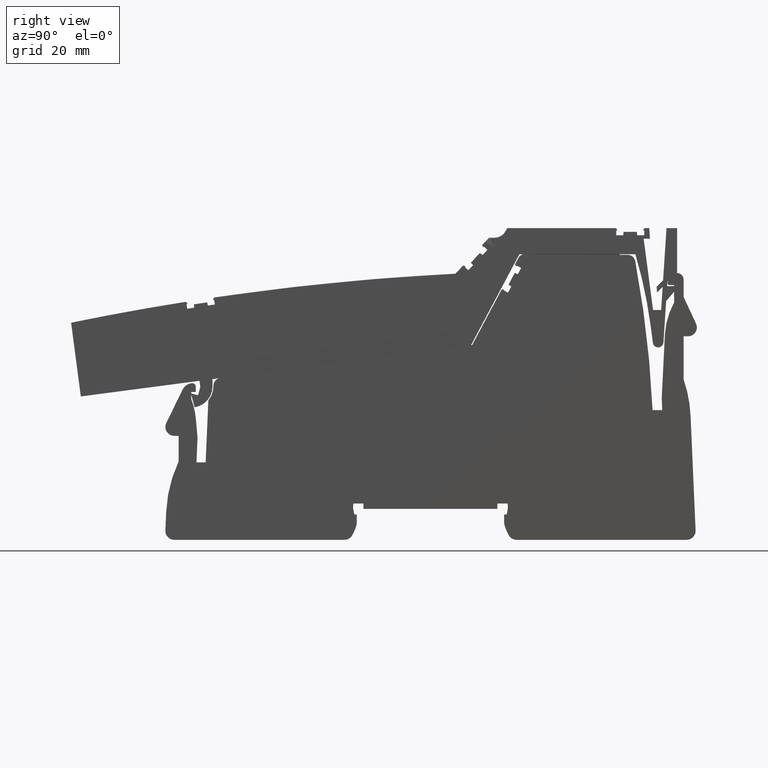
[diagram: clean part render]
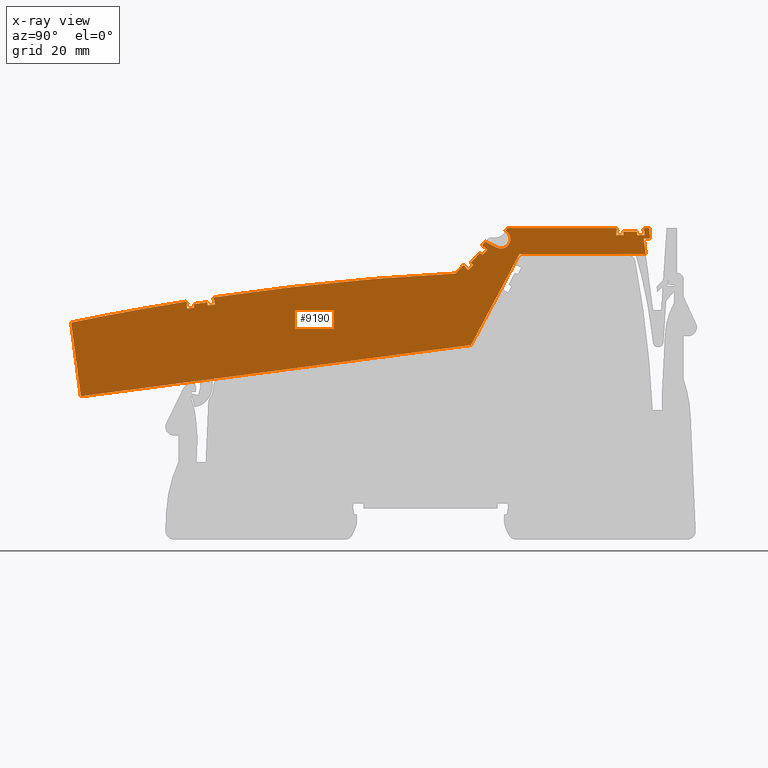
[diagram: x-ray — body ghosted, one internal face saturated and labeled with its STEP entity id]
A machine part, right view, then the same camera in x-ray: the body is ghosted and one INTERNAL B-rep face — a face not visible from any outside direction — is saturated and labeled: STEP entity #9190.
In plain terms, the highlighted planar face has unit normal (-1, 0, 0).
Its self-contained STEP definition (entity closure, byte-faithful):
#5170=CARTESIAN_POINT('',(119.397054029924,63.6873748228642,-35.425));
#5180=DIRECTION('',(0.,0.,-1.));
#5190=DIRECTION('',(-1.,0.,0.));
#5200=AXIS2_PLACEMENT_3D('',#5170,#5180,#5190);
#5210=PLANE('',#5200);
#5220=CARTESIAN_POINT('',(-3.14453621655468,-5.81476390429314,
-35.4250000000002));
#5230=DIRECTION('',(0.130526192220205,-0.99144486137379,
-7.64748233166608E-34));
#5240=VECTOR('',#5230,1.);
#5250=LINE('',#5220,#5240);
#5260=CARTESIAN_POINT('',(-12.2138915265983,63.0738289916539,
-35.4250000000003));
#5270=VERTEX_POINT('',#5260);
#5280=CARTESIAN_POINT('',(-10.0205226234212,46.4135381246434,
-35.4250000000003));
#5290=VERTEX_POINT('',#5280);
#5300=EDGE_CURVE('',#5270,#5290,#5250,.T.);
#5310=ORIENTED_EDGE('',*,*,#5300,.T.);
#5320=CARTESIAN_POINT('',(103.738798089514,-500.113505534603,
-35.4250000000003));
#5330=DIRECTION('',(0.,0.,1.));
#5340=DIRECTION('',(0.991444861373789,0.130526192220215,
-2.46519032881566E-32));
#5350=AXIS2_PLACEMENT_3D('',#5320,#5330,#5340);
#5360=CIRCLE('',#5350,575.);
#5370=CARTESIAN_POINT('',(13.7509776908229,67.8012699202121,
-35.4250000000002));
#5380=VERTEX_POINT('',#5370);
#5390=EDGE_CURVE('',#5380,#5270,#5360,.T.);
#5400=ORIENTED_EDGE('',*,*,#5390,.T.);
#5410=CARTESIAN_POINT('',(19.3311971972878,60.8324931286926,
-35.4250000000003));
#5420=DIRECTION('',(0.625050010518107,-0.780584706711138,
2.1035385032723E-17));
#5430=VECTOR('',#5420,1.);
#5440=LINE('',#5410,#5430);
#5450=CARTESIAN_POINT('',(14.1271119232718,67.3315400992707,
-35.4250000000002));
#5460=VERTEX_POINT('',#5450);
#5470=EDGE_CURVE('',#5380,#5460,#5440,.T.);
#5480=ORIENTED_EDGE('',*,*,#5470,.F.);
#5490=CARTESIAN_POINT('',(71.2058632643823,76.0513988311455,
-35.4250000000003));
#5500=DIRECTION('',(-0.988531191076952,-0.151016834386049,
3.7050830111061E-19));
#5510=VECTOR('',#5500,1.);
#5520=LINE('',#5490,#5510);
#5530=CARTESIAN_POINT('',(13.8579273462111,67.2904170643476,
-35.4250000000002));
#5540=VERTEX_POINT('',#5530);
#5550=EDGE_CURVE('',#5460,#5540,#5520,.T.);
#5560=ORIENTED_EDGE('',*,*,#5550,.F.);
#5570=CARTESIAN_POINT('',(24.1447630728717,-0.0455062081555013,
-35.4250000000002));
#5580=DIRECTION('',(0.151016834389146,-0.988531191076478,
3.08148791101958E-33));
#5590=VECTOR('',#5580,1.);
#5600=LINE('',#5570,#5590);
#5610=CARTESIAN_POINT('',(14.0195153590075,66.2326886898958,
-35.4250000000002));
#5620=VERTEX_POINT('',#5610);
#5630=EDGE_CURVE('',#5540,#5620,#5600,.T.);
#5640=ORIENTED_EDGE('',*,*,#5630,.F.);
#5650=CARTESIAN_POINT('',(-0.345653967706724,64.0381374033337,
-35.4250000000002));
#5660=DIRECTION('',(0.988531191076487,0.151016834389088,0.));
#5670=VECTOR('',#5660,1.);
#5680=LINE('',#5650,#5670);
#5690=CARTESIAN_POINT('',(15.5980845096013,66.4738449813096,
-35.4250000000002));
#5700=VERTEX_POINT('',#5690);
#5710=EDGE_CURVE('',#5620,#5700,#5680,.T.);
#5720=ORIENTED_EDGE('',*,*,#5710,.F.);
#5730=CARTESIAN_POINT('',(19.883211207252,-0.0455062081562119,
-35.4250000000002));
#5740=DIRECTION('',(-0.0642859995533599,0.997931515817306,0.));
#5750=VECTOR('',#5740,1.);
#5760=LINE('',#5730,#5750);
#5770=CARTESIAN_POINT('',(15.5496858383804,67.2251525703748,
-35.4250000000002));
#5780=VERTEX_POINT('',#5770);
#5790=EDGE_CURVE('',#5700,#5780,#5760,.T.);
#5800=ORIENTED_EDGE('',*,*,#5790,.F.);
#5810=CARTESIAN_POINT('',(71.2476405936518,75.7340685105285,
-35.4250000000003));
#5820=DIRECTION('',(0.988531191076482,0.151016834389125,
-3.70508301168123E-19));
#5830=VECTOR('',#5820,1.);
#5840=LINE('',#5810,#5830);
#5850=CARTESIAN_POINT('',(18.5152794116099,67.6782030735422,
-35.4250000000002));
#5860=VERTEX_POINT('',#5850);
#5870=EDGE_CURVE('',#5780,#5860,#5840,.T.);
#5880=ORIENTED_EDGE('',*,*,#5870,.F.);
#5890=CARTESIAN_POINT('',(35.0068322386588,-0.045506208153725,
-35.4250000000003));
#5900=DIRECTION('',(0.236598339928248,-0.971607547080197,
3.08148791101958E-33));
#5910=VECTOR('',#5900,1.);
#5920=LINE('',#5890,#5910);
#5930=CARTESIAN_POINT('',(18.6934059919722,66.9467138759929,
-35.4250000000002));
#5940=VERTEX_POINT('',#5930);
#5950=EDGE_CURVE('',#5860,#5940,#5920,.T.);
#5960=ORIENTED_EDGE('',*,*,#5950,.F.);
#5970=CARTESIAN_POINT('',(-0.34565396770671,64.0381374033322,
-35.4250000000002));
#5980=DIRECTION('',(0.988531191076475,0.151016834389167,0.));
#5990=VECTOR('',#5980,1.);
#6000=LINE('',#5970,#5990);
#6010=CARTESIAN_POINT('',(20.2719751425662,67.1878701674069,
-35.4250000000002));
#6020=VERTEX_POINT('',#6010);
#6030=EDGE_CURVE('',#5940,#6020,#6000,.T.);
#6040=ORIENTED_EDGE('',*,*,#6030,.F.);
#6050=CARTESIAN_POINT('',(30.5431448913667,-0.0455062081544639,
-35.4250000000003));
#6060=DIRECTION('',(-0.151016834389133,0.98853119107648,
-1.54074395550979E-33));
#6070=VECTOR('',#6060,1.);
#6080=LINE('',#6050,#6070);
#6090=CARTESIAN_POINT('',(20.1103871297699,68.2455985418586,
-35.4250000000002));
#6100=VERTEX_POINT('',#6090);
#6110=EDGE_CURVE('',#6020,#6100,#6080,.T.);
#6120=ORIENTED_EDGE('',*,*,#6110,.F.);
#6130=CARTESIAN_POINT('',(71.2058632644025,76.051398830992,
-35.4250000000003));
#6140=DIRECTION('',(-0.988531191077461,-0.151016834382716,
3.70508301048241E-19));
#6150=VECTOR('',#6140,1.);
#6160=LINE('',#6130,#6150);
#6170=CARTESIAN_POINT('',(19.8412025527106,68.2044755069366,
-35.4250000000002));
#6180=VERTEX_POINT('',#6170);
#6190=EDGE_CURVE('',#6100,#6180,#6160,.T.);
#6200=ORIENTED_EDGE('',*,*,#6190,.F.);
#6210=CARTESIAN_POINT('',(16.8367595917158,60.5040941878427,
-35.4250000000003));
#6220=DIRECTION('',(0.363481180557903,0.931601541100181,
-1.0997552478088E-17));
#6230=VECTOR('',#6220,1.);
#6240=LINE('',#6210,#6230);
#6250=CARTESIAN_POINT('',(20.0599333943351,68.7650822179384,
-35.4250000000002));
#6260=VERTEX_POINT('',#6250);
#6270=EDGE_CURVE('',#6180,#6260,#6240,.T.);
#6280=ORIENTED_EDGE('',*,*,#6270,.F.);
#6290=CARTESIAN_POINT('',(103.738798089514,-500.113505534603,
-35.4250000000003));
#6300=DIRECTION('',(0.,0.,1.));
#6310=DIRECTION('',(0.991444861373789,0.130526192220215,
-2.46519032881566E-32));
#6320=AXIS2_PLACEMENT_3D('',#6290,#6300,#6310);
#6330=CIRCLE('',#6320,575.);
#6340=CARTESIAN_POINT('',(74.6334480827672,74.149394713171,
-35.4250000000002));
#6350=VERTEX_POINT('',#6340);
#6360=EDGE_CURVE('',#6350,#6260,#6330,.T.);
#6370=ORIENTED_EDGE('',*,*,#6360,.T.);
#6380=CARTESIAN_POINT('',(71.8493288615166,71.1637923753217,
-35.4250000000003));
#6390=DIRECTION('',(-0.681998360062242,-0.731353701619409,
-2.53969612628871E-19));
#6400=VECTOR('',#6390,1.);
#6410=LINE('',#6380,#6400);
#6420=CARTESIAN_POINT('',(76.3425815296553,75.9822159428719,
-35.4250000000002));
#6430=VERTEX_POINT('',#6420);
#6440=EDGE_CURVE('',#6430,#6350,#6410,.T.);
#6450=ORIENTED_EDGE('',*,*,#6440,.T.);
#6460=CARTESIAN_POINT('',(71.0542353942646,77.2031268491942,
-35.4250000000003));
#6470=DIRECTION('',(0.974370064785282,-0.224951054343664,
3.6059170670998E-17));
#6480=VECTOR('',#6470,1.);
#6490=LINE('',#6460,#6480);
#6500=CARTESIAN_POINT('',(76.9388875179991,75.8445478579857,
-35.4250000000002));
#6510=VERTEX_POINT('',#6500);
#6520=EDGE_CURVE('',#6430,#6510,#6490,.T.);
#6530=ORIENTED_EDGE('',*,*,#6520,.F.);
#6540=CARTESIAN_POINT('',(71.9389824098392,70.4828060669312,
-35.4250000000003));
#6550=DIRECTION('',(-0.68199836006446,-0.731353701617341,
-2.53969612900522E-19));
#6560=VECTOR('',#6550,1.);
#6570=LINE('',#6540,#6560);
#6580=CARTESIAN_POINT('',(76.7531741669514,75.6453946712894,
-35.4250000000002));
#6590=VERTEX_POINT('',#6580);
#6600=EDGE_CURVE('',#6510,#6590,#6570,.T.);
#6610=ORIENTED_EDGE('',*,*,#6600,.F.);
#6620=CARTESIAN_POINT('',(-0.345653967720494,147.541215030367,
-35.4250000000002));
#6630=DIRECTION('',(0.731353701619354,-0.681998360062301,0.));
#6640=VECTOR('',#6630,1.);
#6650=LINE('',#6620,#6640);
#6660=CARTESIAN_POINT('',(77.5357226276842,74.9156564260227,
-35.4250000000002));
#6670=VERTEX_POINT('',#6660);
#6680=EDGE_CURVE('',#6590,#6670,#6650,.T.);
#6690=ORIENTED_EDGE('',*,*,#6680,.F.);
#6700=CARTESIAN_POINT('',(7.63330759690007,-0.0455062081582298,
-35.4250000000002));
#6710=DIRECTION('',(0.681998360062454,0.731353701619212,0.));
#6720=VECTOR('',#6710,1.);
#6730=LINE('',#6700,#6720);
#6740=CARTESIAN_POINT('',(78.6247945575012,76.0835430865249,
-35.4250000000002));
#6750=VERTEX_POINT('',#6740);
#6760=EDGE_CURVE('',#6670,#6750,#6730,.T.);
#6770=ORIENTED_EDGE('',*,*,#6760,.F.);
#6780=CARTESIAN_POINT('',(147.17169843093,-0.0455062081352366,
-35.4250000000003));
#6790=DIRECTION('',(-0.66913060635868,0.743144825477554,
-1.23259516440783E-32));
#6800=VECTOR('',#6790,1.);
#6810=LINE('',#6780,#6800);
#6820=CARTESIAN_POINT('',(78.1210296250737,76.6430307250117,
-35.4250000000002));
#6830=VERTEX_POINT('',#6820);
#6840=EDGE_CURVE('',#6750,#6830,#6810,.T.);
#6850=ORIENTED_EDGE('',*,*,#6840,.F.);
#6860=CARTESIAN_POINT('',(71.9931128541153,70.0716445221975,
-35.4250000000003));
#6870=DIRECTION('',(0.681998360062334,0.731353701619324,
2.53969612640087E-19));
#6880=VECTOR('',#6870,1.);
#6890=LINE('',#6860,#6880);
#6900=CARTESIAN_POINT('',(80.1670247052604,78.8370918298694,
-35.4250000000002));
#6910=VERTEX_POINT('',#6900);
#6920=EDGE_CURVE('',#6830,#6910,#6890,.T.);
#6930=ORIENTED_EDGE('',*,*,#6920,.F.);
#6940=CARTESIAN_POINT('',(-0.345653967719528,141.740490428594,
-35.4250000000002));
#6950=DIRECTION('',(0.788010753606857,-0.615661475325486,
1.23259516440783E-32));
#6960=VECTOR('',#6950,1.);
#6970=LINE('',#6940,#6960);
#6980=CARTESIAN_POINT('',(80.7602903252617,78.373581928262,
-35.4250000000002));
#6990=VERTEX_POINT('',#6980);
#7000=EDGE_CURVE('',#6910,#6990,#6970,.T.);
#7010=ORIENTED_EDGE('',*,*,#7000,.F.);
#7020=CARTESIAN_POINT('',(7.63330759692464,-0.0455062081582298,
-35.4250000000002));
#7030=DIRECTION('',(0.68199836006233,0.731353701619328,
1.23259516440783E-32));
#7040=VECTOR('',#7030,1.);
#7050=LINE('',#7020,#7040);
#7060=CARTESIAN_POINT('',(81.8493622550788,79.5414685887646,
-35.4250000000002));
#7070=VERTEX_POINT('',#7060);
#7080=EDGE_CURVE('',#6990,#7070,#7050,.T.);
#7090=ORIENTED_EDGE('',*,*,#7080,.F.);
#7100=CARTESIAN_POINT('',(-0.345653967721901,156.189561221815,
-35.4250000000002));
#7110=DIRECTION('',(-0.731353701619354,0.681998360062301,0.));
#7120=VECTOR('',#7110,1.);
#7130=LINE('',#7100,#7120);
#7140=CARTESIAN_POINT('',(81.0668137943461,80.2712068340312,
-35.4250000000002));
#7150=VERTEX_POINT('',#7140);
#7160=EDGE_CURVE('',#7070,#7150,#7130,.T.);
#7170=ORIENTED_EDGE('',*,*,#7160,.F.);
#7180=CARTESIAN_POINT('',(71.9389824098373,70.4828060669452,
-35.4250000000003));
#7190=DIRECTION('',(-0.681998360064079,-0.731353701617697,
-2.5396961285377E-19));
#7200=VECTOR('',#7190,1.);
#7210=LINE('',#7180,#7200);
#7220=CARTESIAN_POINT('',(80.881100443299,80.0720536473354,
-35.4250000000002));
#7230=VERTEX_POINT('',#7220);
#7240=EDGE_CURVE('',#7150,#7230,#7210,.T.);
#7250=ORIENTED_EDGE('',*,*,#7240,.F.);
#7260=CARTESIAN_POINT('',(84.1540895058051,69.3665888019586,
-35.4250000000003));
#7270=DIRECTION('',(-0.292371704722518,0.956304755963102,
5.82816236513809E-18));
#7280=VECTOR('',#7270,1.);
#7290=LINE('',#7260,#7280);
#7300=CARTESIAN_POINT('',(80.702171507929,80.6573038241132,
-35.4250000000002));
#7310=VERTEX_POINT('',#7300);
#7320=EDGE_CURVE('',#7230,#7310,#7290,.T.);
#7330=ORIENTED_EDGE('',*,*,#7320,.F.);
#7340=CARTESIAN_POINT('',(5.44558365918665,-0.0455062081585993,
-35.4250000000002));
#7350=DIRECTION('',(0.681998360062242,0.731353701619409,
1.23259516440783E-32));
#7360=VECTOR('',#7350,1.);
#7370=LINE('',#7340,#7360);
#7380=CARTESIAN_POINT('',(81.3667520865037,81.3699792418672,
-35.4250000000002));
#7390=VERTEX_POINT('',#7380);
#7400=EDGE_CURVE('',#7310,#7390,#7370,.T.);
#7410=ORIENTED_EDGE('',*,*,#7400,.F.);
#7420=CARTESIAN_POINT('',(-0.345653967716601,123.906765454984,
-35.4250000000002));
#7430=DIRECTION('',(0.88701083317829,-0.461748613234903,
1.23259516440783E-32));
#7440=VECTOR('',#7430,1.);
#7450=LINE('',#7420,#7440);
#7460=CARTESIAN_POINT('',(83.9099493325979,80.046074552497,
-35.4250000000002));
#7470=VERTEX_POINT('',#7460);
#7480=EDGE_CURVE('',#7390,#7470,#7450,.T.);
#7490=ORIENTED_EDGE('',*,*,#7480,.F.);
#7500=CARTESIAN_POINT('',(84.902708851053,81.9531478438304,
-35.4250000000002));
#7510=DIRECTION('',(0.,0.,1.));
#7520=DIRECTION('',(0.991444861373789,0.130526192220215,
-2.46519032881566E-32));
#7530=AXIS2_PLACEMENT_3D('',#7500,#7510,#7520);
#7540=CIRCLE('',#7530,2.15000000000011);
#7550=CARTESIAN_POINT('',(85.9777088510531,83.8151024619671,
-35.4250000000002));
#7560=VERTEX_POINT('',#7550);
#7570=EDGE_CURVE('',#7470,#7560,#7540,.T.);
#7580=ORIENTED_EDGE('',*,*,#7570,.F.);
#7590=CARTESIAN_POINT('',(37.560763860968,-0.0455062081532986,
-35.4250000000003));
#7600=DIRECTION('',(-0.499999999999885,-0.866025403784505,
-2.46519032881566E-32));
#7610=VECTOR('',#7600,1.);
#7620=LINE('',#7590,#7610);
#7630=CARTESIAN_POINT('',(86.3391365011984,84.4411135152793,
-35.4250000000002));
#7640=VERTEX_POINT('',#7630);
#7650=EDGE_CURVE('',#7640,#7560,#7620,.T.);
#7660=ORIENTED_EDGE('',*,*,#7650,.T.);
#7670=CARTESIAN_POINT('',(-0.345653967710078,84.441113515265,
-35.4250000000002));
#7680=DIRECTION('',(-1.,-1.64895874732451E-13,0.));
#7690=VECTOR('',#7680,1.);
#7700=LINE('',#7670,#7690);
#7710=CARTESIAN_POINT('',(110.934443106477,84.4411135152833,
-35.4250000000002));
#7720=VERTEX_POINT('',#7710);
#7730=EDGE_CURVE('',#7720,#7640,#7700,.T.);
#7740=ORIENTED_EDGE('',*,*,#7730,.T.);
#7750=CARTESIAN_POINT('',(117.131150620808,73.7081012608464,
-35.4250000000003));
#7760=DIRECTION('',(0.500000000000961,-0.866025403783883,
3.34767537788399E-17));
#7770=VECTOR('',#7760,1.);
#7780=LINE('',#7750,#7770);
#7790=CARTESIAN_POINT('',(111.240438749148,83.9111135152852,
-35.4250000000002));
#7800=VERTEX_POINT('',#7790);
#7810=EDGE_CURVE('',#7720,#7800,#7780,.T.);
#7820=ORIENTED_EDGE('',*,*,#7810,.F.);
#7830=CARTESIAN_POINT('',(70.1711121959183,83.9111135150674,
-35.4250000000003));
#7840=DIRECTION('',(-1.,-5.30228638773167E-12,-1.14423563262216E-17));
#7850=VECTOR('',#7840,1.);
#7860=LINE('',#7830,#7850);
#7870=CARTESIAN_POINT('',(110.968131128013,83.9111135152838,
-35.4250000000002));
#7880=VERTEX_POINT('',#7870);
#7890=EDGE_CURVE('',#7800,#7880,#7860,.T.);
#7900=ORIENTED_EDGE('',*,*,#7890,.F.);
#7910=CARTESIAN_POINT('',(110.968131128019,-0.045506208141191,
-35.4250000000002));
#7920=DIRECTION('',(7.14706072102445E-14,-1.,3.08148791101958E-33));
#7930=VECTOR('',#7920,1.);
#7940=LINE('',#7910,#7930);
#7950=CARTESIAN_POINT('',(110.968131128013,82.8411135152836,
-35.4250000000002));
#7960=VERTEX_POINT('',#7950);
#7970=EDGE_CURVE('',#7880,#7960,#7940,.T.);
#7980=ORIENTED_EDGE('',*,*,#7970,.F.);
#7990=CARTESIAN_POINT('',(-0.345653967709808,82.841113515252,
-35.4250000000002));
#8000=DIRECTION('',(1.,2.84050560850346E-13,0.));
#8010=VECTOR('',#8000,1.);
#8020=LINE('',#7990,#8010);
#8030=CARTESIAN_POINT('',(112.565014630368,82.8411135152841,
-35.4250000000002));
#8040=VERTEX_POINT('',#8030);
#8050=EDGE_CURVE('',#7960,#8040,#8020,.T.);
#8060=ORIENTED_EDGE('',*,*,#8050,.F.);
#8070=CARTESIAN_POINT('',(105.31337504659,-0.0455062081421289,
-35.4250000000003));
#8080=DIRECTION('',(0.0871557427475897,0.996194698091751,
-3.08148791101958E-33));
#8090=VECTOR('',#8080,1.);
#8100=LINE('',#8070,#8090);
#8110=CARTESIAN_POINT('',(112.630631128013,83.591113515284,
-35.4250000000002));
#8120=VERTEX_POINT('',#8110);
#8130=EDGE_CURVE('',#8040,#8120,#8100,.T.);
#8140=ORIENTED_EDGE('',*,*,#8130,.F.);
#8150=CARTESIAN_POINT('',(70.2132409951187,83.5911135152778,
-35.4250000000003));
#8160=DIRECTION('',(1.,1.46216372343133E-13,1.14423563262215E-17));
#8170=VECTOR('',#8160,1.);
#8180=LINE('',#8150,#8170);
#8190=CARTESIAN_POINT('',(115.630631128013,83.5911135152844,
-35.4250000000002));
#8200=VERTEX_POINT('',#8190);
#8210=EDGE_CURVE('',#8120,#8200,#8180,.T.);
#8220=ORIENTED_EDGE('',*,*,#8210,.F.);
#8230=CARTESIAN_POINT('',(122.947887209429,-0.0455062081392299,
-35.4250000000002));
#8240=DIRECTION('',(0.0871557427475104,-0.996194698091758,
-7.70371977754894E-34));
#8250=VECTOR('',#8240,1.);
#8260=LINE('',#8230,#8250);
#8270=CARTESIAN_POINT('',(115.696247625657,82.8411135152843,
-35.4250000000002));
#8280=VERTEX_POINT('',#8270);
#8290=EDGE_CURVE('',#8200,#8280,#8260,.T.);
#8300=ORIENTED_EDGE('',*,*,#8290,.F.);
#8310=CARTESIAN_POINT('',(-0.345653967709808,82.8411135152559,
-35.4250000000002));
#8320=DIRECTION('',(1.,2.45498066320238E-13,0.));
#8330=VECTOR('',#8320,1.);
#8340=LINE('',#8310,#8330);
#8350=CARTESIAN_POINT('',(117.293131128013,82.8411135152847,
-35.4250000000002));
#8360=VERTEX_POINT('',#8350);
#8370=EDGE_CURVE('',#8280,#8360,#8340,.T.);
#8380=ORIENTED_EDGE('',*,*,#8370,.F.);
#8390=CARTESIAN_POINT('',(117.293131128031,-0.0455062081401536,
-35.4250000000002));
#8400=DIRECTION('',(-2.19824158875781E-13,1.,0.));
#8410=VECTOR('',#8400,1.);
#8420=LINE('',#8390,#8410);
#8430=CARTESIAN_POINT('',(117.293131128013,83.9111135152846,
-35.4250000000002));
#8440=VERTEX_POINT('',#8430);
#8450=EDGE_CURVE('',#8360,#8440,#8420,.T.);
#8460=ORIENTED_EDGE('',*,*,#8450,.F.);
#8470=CARTESIAN_POINT('',(70.1711121958593,83.9111135155156,
-35.4250000000003));
#8480=DIRECTION('',(-1.,4.90199547620307E-12,-1.14423563262215E-17));
#8490=VECTOR('',#8480,1.);
#8500=LINE('',#8470,#8490);
#8510=CARTESIAN_POINT('',(117.020823506878,83.911113515286,
-35.4250000000002));
#8520=VERTEX_POINT('',#8510);
#8530=EDGE_CURVE('',#8440,#8520,#8500,.T.);
#8540=ORIENTED_EDGE('',*,*,#8530,.F.);
#8550=CARTESIAN_POINT('',(110.636452172055,72.85305798899,
-35.4250000000003));
#8560=DIRECTION('',(0.50000000000011,0.866025403784375,
-2.20343974524871E-17));
#8570=VECTOR('',#8560,1.);
#8580=LINE('',#8550,#8570);
#8590=CARTESIAN_POINT('',(117.326819149548,84.4411135152845,
-35.4250000000002));
#8600=VERTEX_POINT('',#8590);
#8610=EDGE_CURVE('',#8520,#8600,#8580,.T.);
#8620=ORIENTED_EDGE('',*,*,#8610,.F.);
#8630=CARTESIAN_POINT('',(70.1013363721694,84.4411135152765,
-35.4250000000003));
#8640=DIRECTION('',(-1.,-1.68226543806327E-13,-1.14423563262216E-17));
#8650=VECTOR('',#8640,1.);
#8660=LINE('',#8630,#8650);
#8670=CARTESIAN_POINT('',(118.430631128013,84.4411135152847,
-35.4250000000002));
#8680=VERTEX_POINT('',#8670);
#8690=EDGE_CURVE('',#8680,#8600,#8660,.T.);
#8700=ORIENTED_EDGE('',*,*,#8690,.T.);
#8710=CARTESIAN_POINT('',(119.116974323162,73.9695399110298,
-35.4250000000003));
#8720=DIRECTION('',(-0.0654031292302853,0.997858923238594,
-1.07067800097519E-18));
#8730=VECTOR('',#8720,1.);
#8740=LINE('',#8710,#8730);
#8750=CARTESIAN_POINT('',(118.58793543877,82.0411135152858,
-35.4250000000002));
#8760=VERTEX_POINT('',#8750);
#8770=EDGE_CURVE('',#8760,#8680,#8740,.T.);
#8780=ORIENTED_EDGE('',*,*,#8770,.T.);
#8790=CARTESIAN_POINT('',(70.4173023663801,82.0411135152725,
-35.4250000000003));
#8800=DIRECTION('',(-1.,-2.76584311009742E-13,-1.14423563262215E-17));
#8810=VECTOR('',#8800,1.);
#8820=LINE('',#8790,#8810);
#8830=CARTESIAN_POINT('',(117.16725468927,82.0411135152854,
-35.4250000000002));
#8840=VERTEX_POINT('',#8830);
#8850=EDGE_CURVE('',#8760,#8840,#8820,.T.);
#8860=ORIENTED_EDGE('',*,*,#8850,.F.);
#8870=CARTESIAN_POINT('',(127.974163194379,-0.0455062081384057,
-35.4250000000002));
#8880=DIRECTION('',(0.130526192220215,-0.991444861373789,
-2.35317066351981E-33));
#8890=VECTOR('',#8880,1.);
#8900=LINE('',#8870,#8890);
#8910=CARTESIAN_POINT('',(117.628038430826,78.5411135152845,
-35.4250000000002));
#8920=VERTEX_POINT('',#8910);
#8930=EDGE_CURVE('',#8840,#8920,#8900,.T.);
#8940=ORIENTED_EDGE('',*,*,#8930,.F.);
#8950=CARTESIAN_POINT('',(70.878086107936,78.5411135152768,
-35.4250000000002));
#8960=DIRECTION('',(1.,1.64895874732451E-13,1.14423563262215E-17));
#8970=VECTOR('',#8960,1.);
#8980=LINE('',#8950,#8970);
#8990=CARTESIAN_POINT('',(89.0777240818256,78.5411135152798,
-35.4250000000003));
#9000=VERTEX_POINT('',#8990);
#9010=EDGE_CURVE('',#9000,#8920,#8980,.T.);
#9020=ORIENTED_EDGE('',*,*,#9010,.T.);
#9030=CARTESIAN_POINT('',(84.2029640194473,69.3730232537479,
-35.4250000000003));
#9040=DIRECTION('',(0.469471562785745,0.882947592859004,
1.98252351633152E-18));
#9050=VECTOR('',#9040,1.);
#9060=LINE('',#9030,#9050);
#9070=CARTESIAN_POINT('',(78.1684977957757,58.0238429226456,
-35.4250000000002));
#9080=VERTEX_POINT('',#9070);
#9090=EDGE_CURVE('',#9080,#9000,#9060,.T.);
#9100=ORIENTED_EDGE('',*,*,#9090,.T.);
#9110=CARTESIAN_POINT('',(73.6574236765249,57.4299487480429,
-35.4250000000002));
#9120=DIRECTION('',(0.991444861373768,0.130526192220376,
2.46519032881566E-32));
#9130=VECTOR('',#9120,1.);
#9140=LINE('',#9110,#9130);
#9150=EDGE_CURVE('',#5290,#9080,#9140,.T.);
#9160=ORIENTED_EDGE('',*,*,#9150,.T.);
#9170=EDGE_LOOP('',(#9160,#9100,#9020,#8940,#8860,#8780,#8700,#8620,
#8540,#8460,#8380,#8300,#8220,#8140,#8060,#7980,#7900,#7820,#7740,#7660,
#7580,#7490,#7410,#7330,#7250,#7170,#7090,#7010,#6930,#6850,#6770,#6690,
#6610,#6530,#6450,#6370,#6280,#6200,#6120,#6040,#5960,#5880,#5800,#5720,
#5640,#5560,#5480,#5400,#5310));
#9180=FACE_OUTER_BOUND('',#9170,.T.);
#9190=ADVANCED_FACE('',(#9180),#5210,.F.);